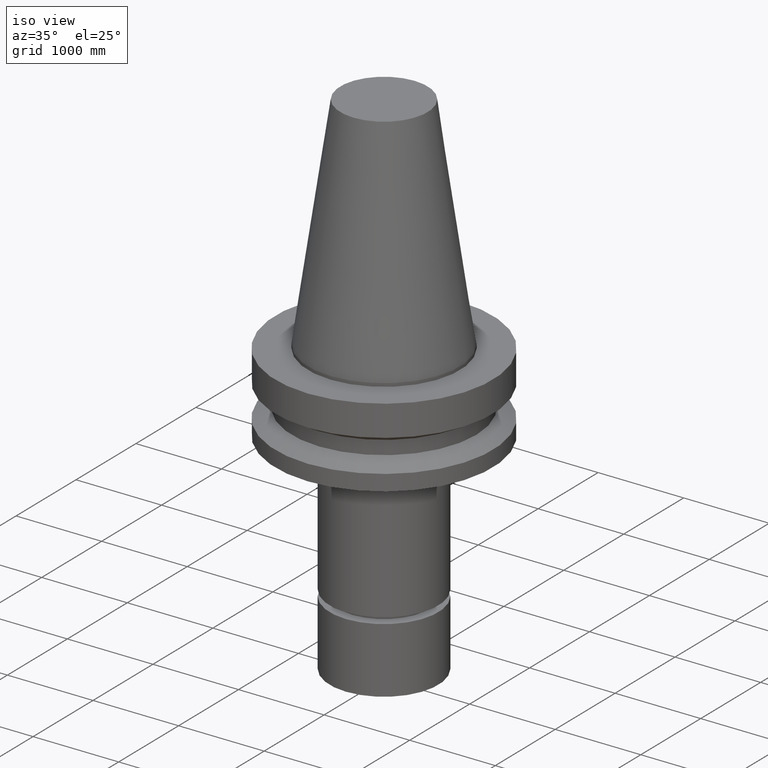
[diagram: clean part render]
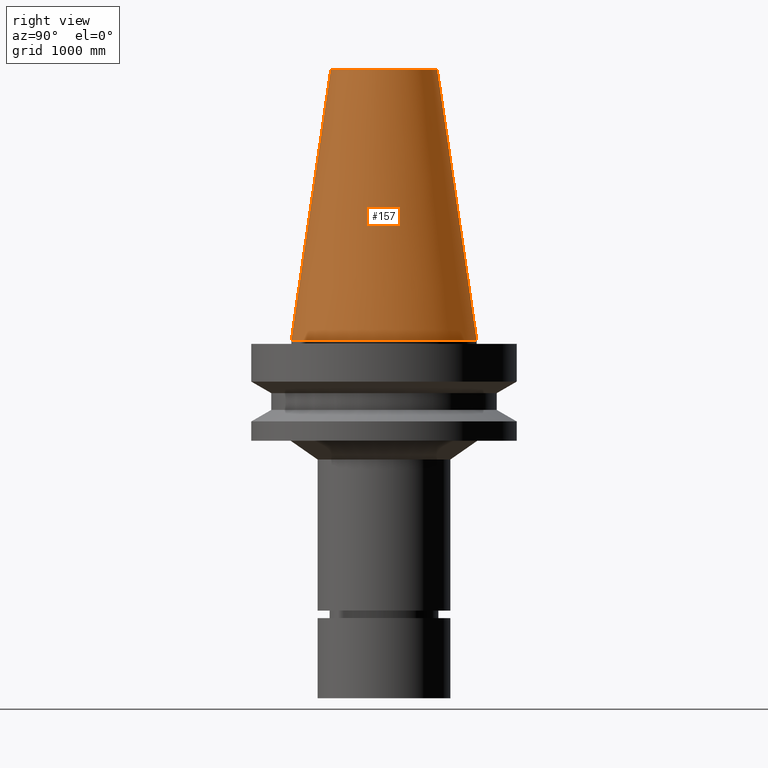
[diagram: tour spotlight — one face highlighted and labeled with its STEP entity id]
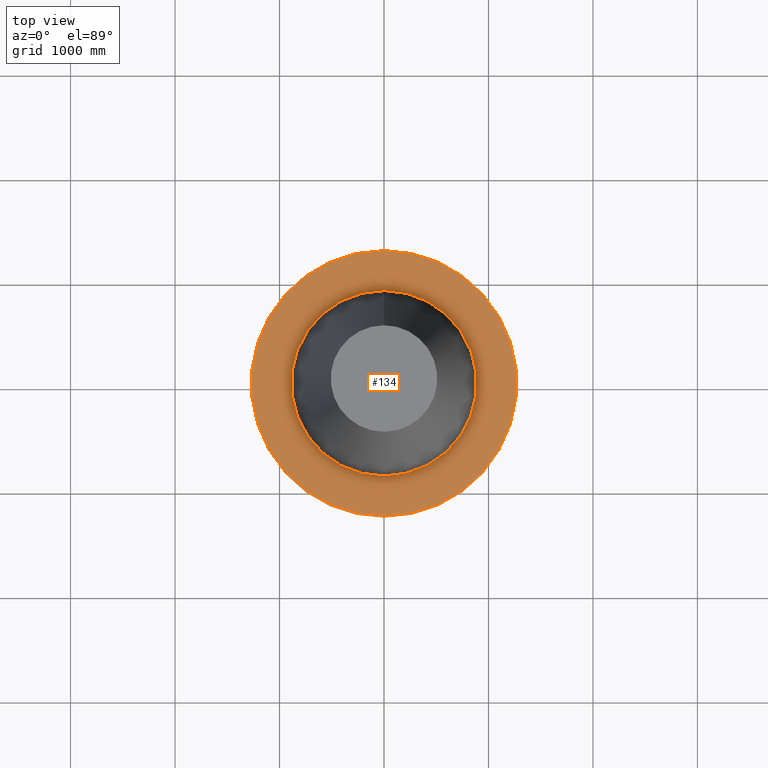
[diagram: tour spotlight — one face highlighted and labeled with its STEP entity id]
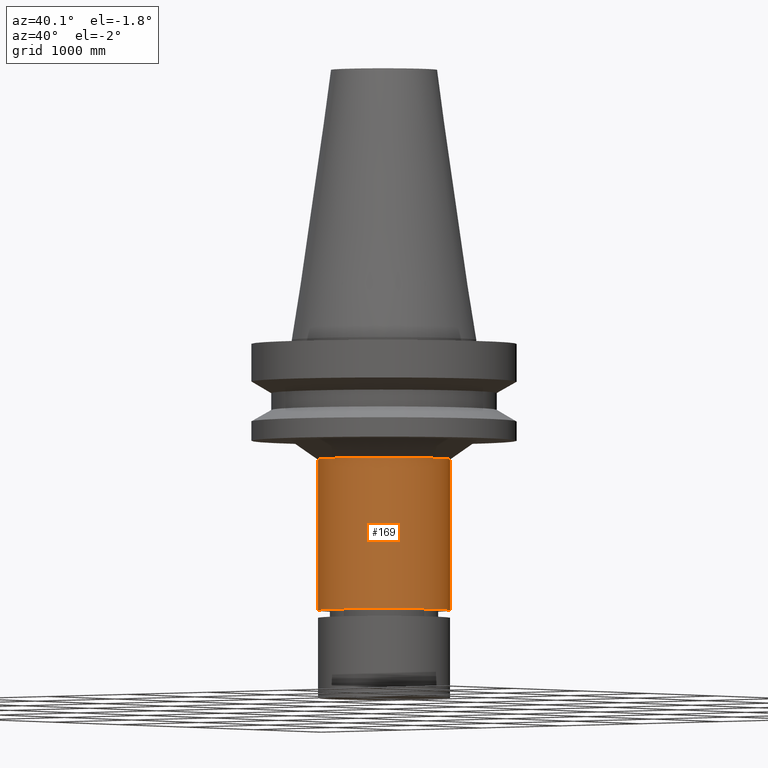
[diagram: tour spotlight — one face highlighted and labeled with its STEP entity id]
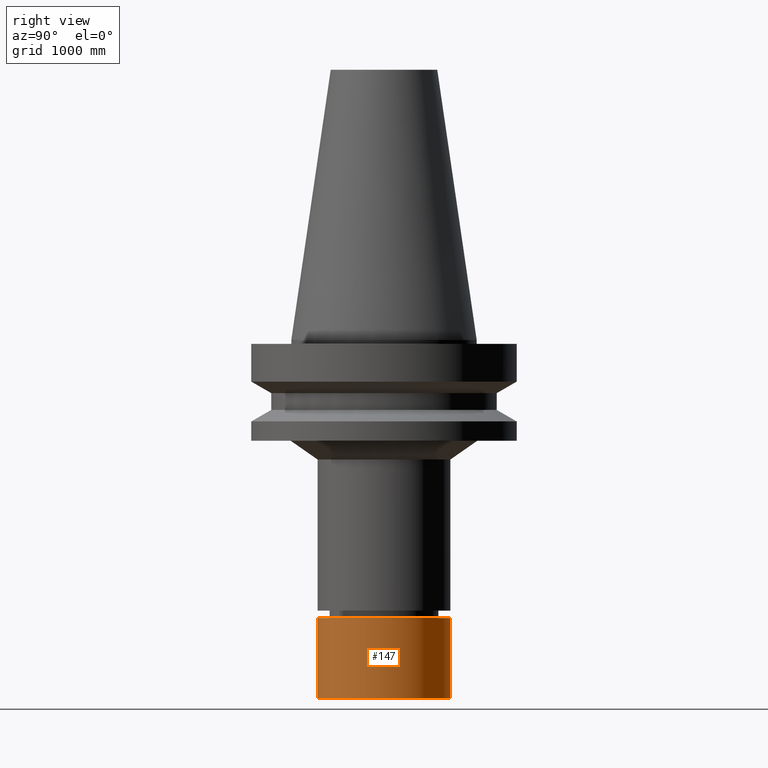
[diagram: tour spotlight — one face highlighted and labeled with its STEP entity id]
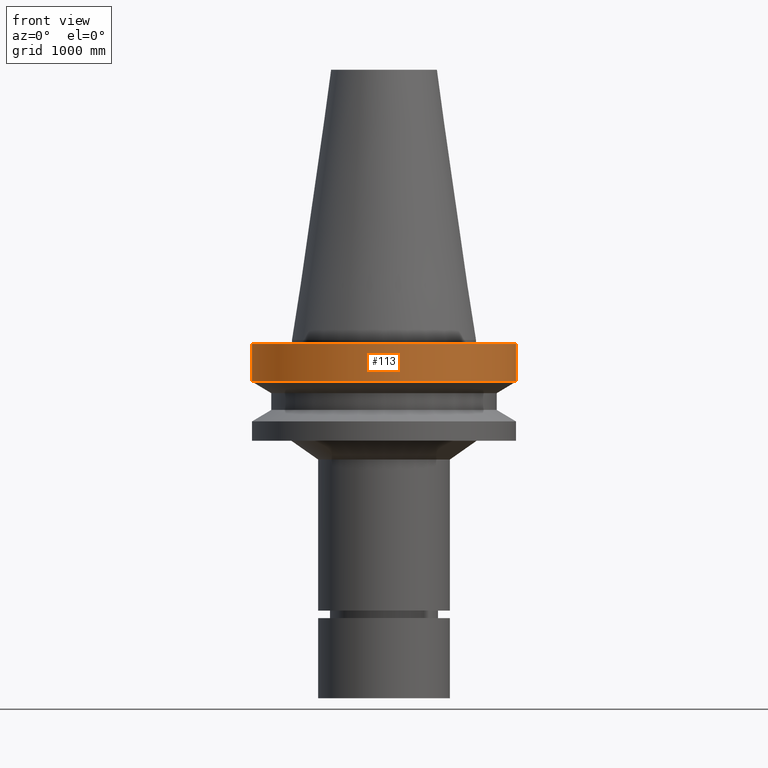
[diagram: tour spotlight — one face highlighted and labeled with its STEP entity id]
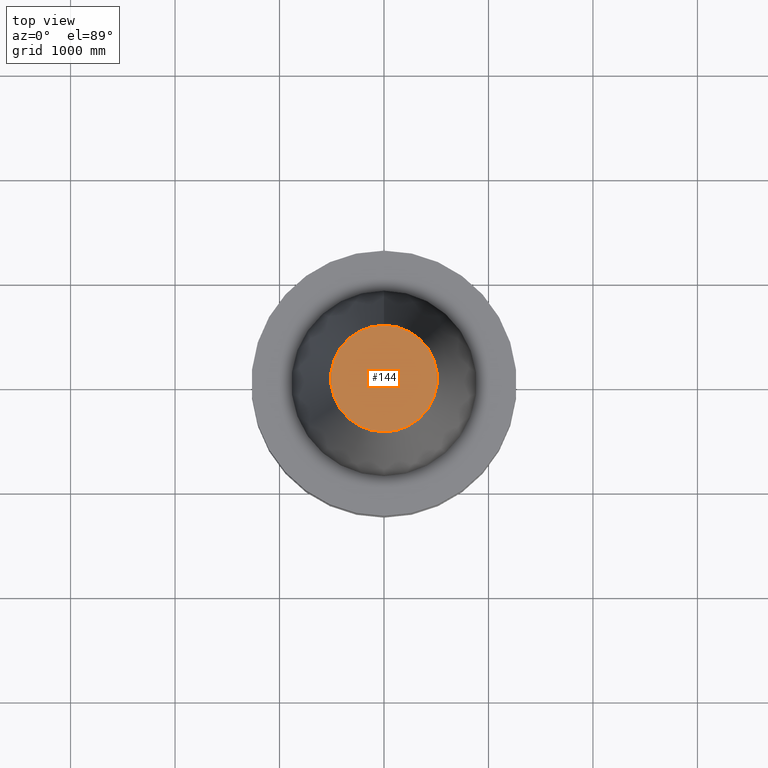
[diagram: tour spotlight — one face highlighted and labeled with its STEP entity id]
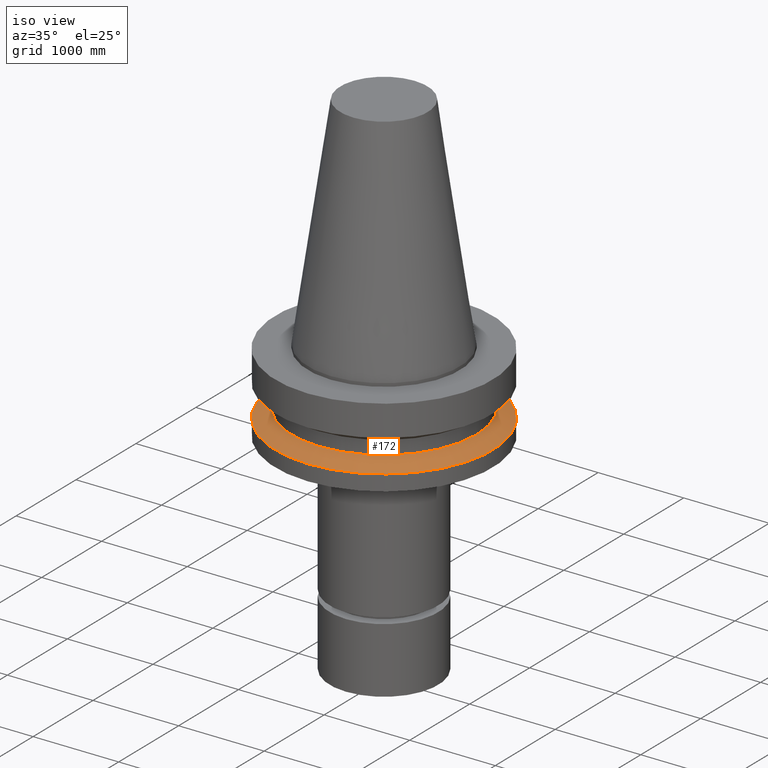
[diagram: tour spotlight — one face highlighted and labeled with its STEP entity id]
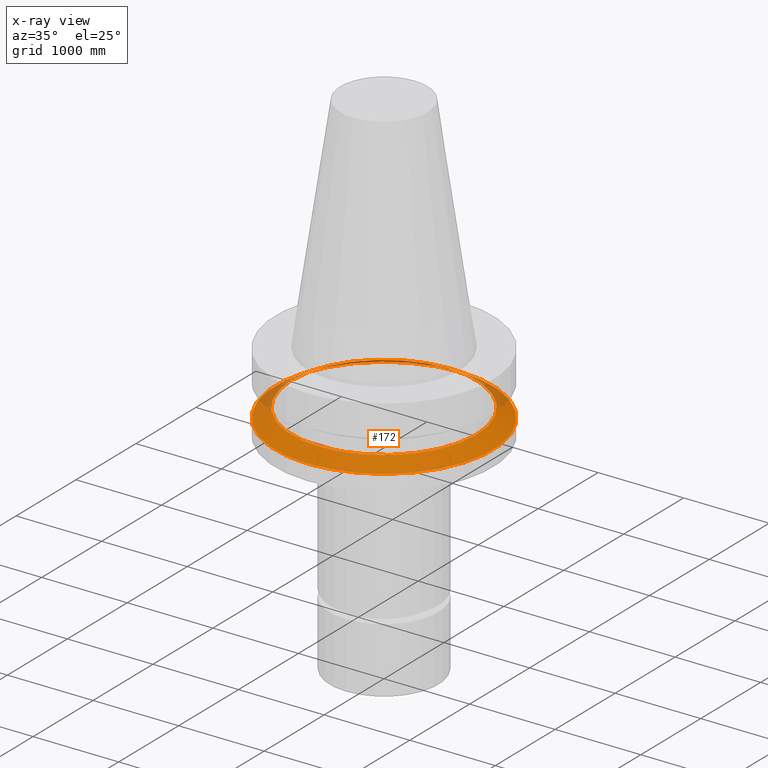
[diagram: x-ray of the same camera — body ghosted, this tour face saturated]
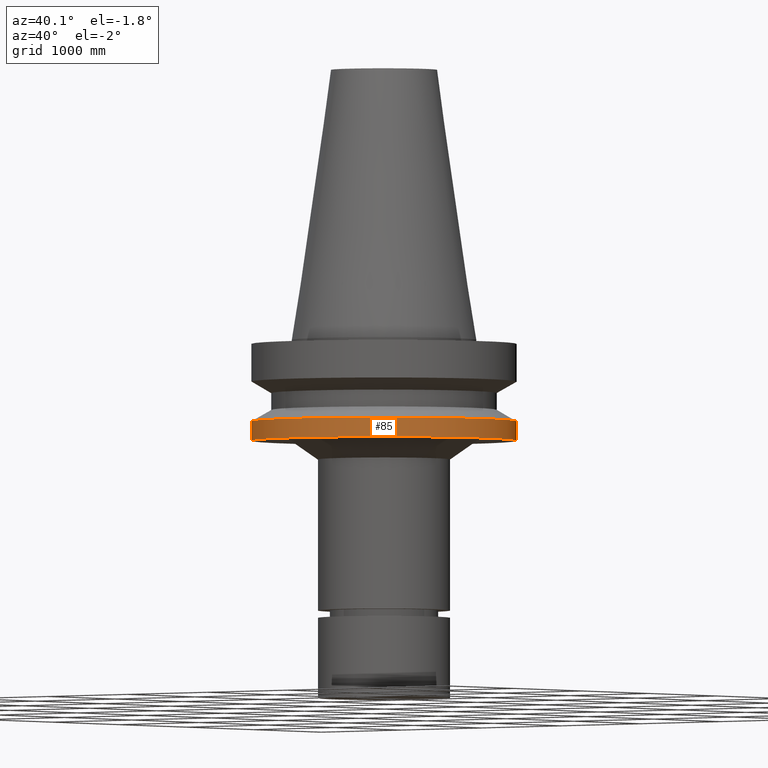
[diagram: tour spotlight — one face highlighted and labeled with its STEP entity id]
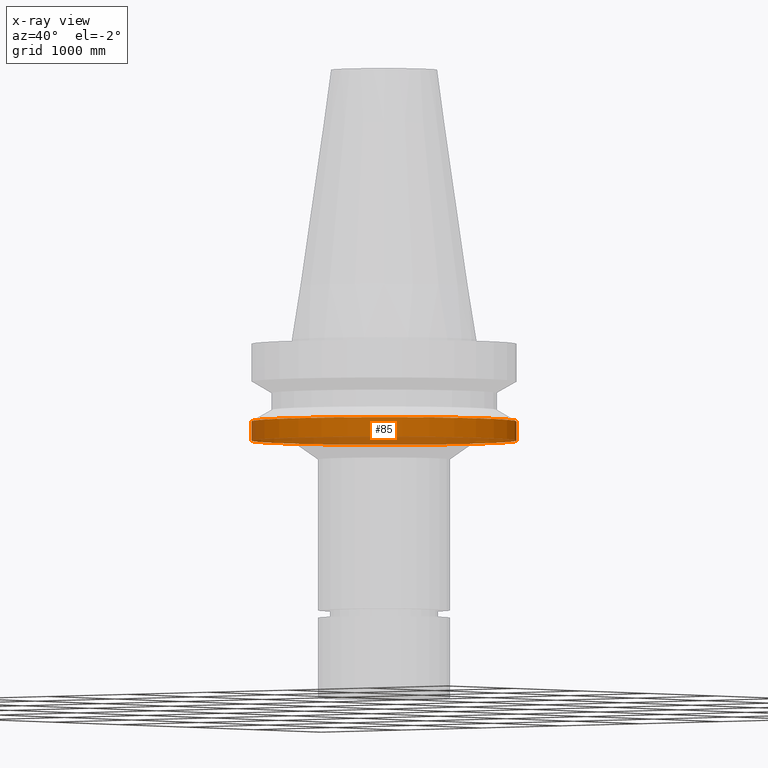
[diagram: x-ray of the same camera — body ghosted, this tour face saturated]
A machine part: a face-by-face anatomy tour. The part has 21 B-rep faces; the first image is the clean iso view, then the 8 largest visible faces are spotlighted one at a time (largest first), each with its STEP entity span.

Face 1 — right view, entity #157. In plain terms, the highlighted conical surface has half-angle 8.297 deg.
Definition (entity closure, byte-faithful):
#131=EDGE_CURVE('Unnamed[1]',#288,#288,#289,.T.);
#154=EDGE_CURVE('Unnamed[1]',#322,#322,#323,.T.);
#157=ADVANCED_FACE('Unnamed[1]',(#326,#327),#328,.T.);
#288=VERTEX_POINT('',#487);
#289=CIRCLE('',#488,20.0791666651884);
#322=VERTEX_POINT('',#529);
#323=CIRCLE('',#530,34.925);
#326=FACE_BOUND('',#534,.T.);
#327=FACE_BOUND('',#535,.T.);
#328=CONICAL_SURFACE('',#536,27.5020833325942,0.144812498253157);
#487=CARTESIAN_POINT('',(-6.23345220766003E-015,20.0791666651884,101.8));
#488=AXIS2_PLACEMENT_3D('',#677,#678,#679);
#529=CARTESIAN_POINT('',(-4.30483861169435E-031,34.925,4.27707894602213E-015));
#530=AXIS2_PLACEMENT_3D('',#713,#714,#715);
#534=EDGE_LOOP('',(#717));
#535=EDGE_LOOP('',(#718));
#536=AXIS2_PLACEMENT_3D('',#719,#720,#721);
#677=CARTESIAN_POINT('',(-6.23345220766003E-015,1.30258929046129E-014,101.8));
#678=DIRECTION('',(-6.12323399573677E-017,-1.5261999847694E-017,1.0));
#679=DIRECTION('',(-5.76168069386895E-033,1.0,1.5261999847694E-017));
#713=CARTESIAN_POINT('',(-1.79707006884519E-046,1.45795644891122E-014,1.78548169845537E-030));
#714=DIRECTION('',(-6.12323399573677E-017,-1.52619998477369E-017,1.0));
#715=DIRECTION('',(-5.761680693874E-033,1.0,1.52619998477369E-017));
#717=ORIENTED_EDGE('',*,*,#131,.F.);
#718=ORIENTED_EDGE('',*,*,#154,.T.);
#719=CARTESIAN_POINT('',(-3.11672610383001E-015,1.38027286968626E-014,50.9));
#720=DIRECTION('',(6.12323399573677E-017,1.52619998476919E-017,-1.0));
#721=DIRECTION('',(-5.76168069388031E-033,1.0,1.52619998476919E-017));

Face 2 — top view, entity #134. In plain terms, the highlighted planar face has unit normal (-0, -0, 1).
Definition (entity closure, byte-faithful):
#102=EDGE_CURVE('Unnamed[1]',#244,#244,#245,.T.);
#134=ADVANCED_FACE('Unnamed[1]',(#292,#293),#294,.T.);
#141=EDGE_CURVE('Unnamed[1]',#302,#302,#303,.T.);
#244=VERTEX_POINT('',#431);
#245=CIRCLE('',#432,50.0);
#292=FACE_BOUND('',#492,.T.);
#293=FACE_OUTER_BOUND('',#493,.T.);
#294=PLANE('',#494);
#302=VERTEX_POINT('',#504);
#303=CIRCLE('',#505,34.925);
#431=CARTESIAN_POINT('',(9.18485099360509E-017,50.0,-1.49999999999999));
#432=AXIS2_PLACEMENT_3D('',#628,#629,#630);
#492=EDGE_LOOP('',(#681));
#493=EDGE_LOOP('',(#682));
#494=AXIS2_PLACEMENT_3D('',#683,#684,#685);
#504=CARTESIAN_POINT('',(9.18485099360511E-017,34.925,-1.5));
#505=AXIS2_PLACEMENT_3D('',#690,#691,#692);
#628=CARTESIAN_POINT('',(9.18485099360515E-017,1.46024574888838E-014,-1.5));
#629=DIRECTION('',(-6.12323399573677E-017,-1.52619998477039E-017,1.0));
#630=DIRECTION('',(-5.76168069387682E-033,1.0,1.52619998477039E-017));
#681=ORIENTED_EDGE('',*,*,#141,.F.);
#682=ORIENTED_EDGE('',*,*,#102,.T.);
#683=CARTESIAN_POINT('',(9.1848509936051E-017,42.4625,-1.49999999999999));
#684=DIRECTION('',(-6.12323399573677E-017,-1.22464679914735E-016,1.0));
#685=DIRECTION('',(-1.23259516440783E-032,1.0,1.22464679914735E-016));
#690=CARTESIAN_POINT('',(9.18485099360515E-017,1.46024574888838E-014,-1.5));
#691=DIRECTION('',(-6.12323399573677E-017,-1.52619998477369E-017,1.0));
#692=DIRECTION('',(-5.761680693874E-033,1.0,1.52619998477369E-017));

Face 3 — auxiliary view, entity #169. In plain terms, the highlighted cylindrical surface (bore or boss wall) has radius 635 mm, axis along (-0, -0, 1).
Definition (entity closure, byte-faithful):
#115=EDGE_CURVE('Unnamed[1]',#265,#265,#266,.T.);
#152=EDGE_CURVE('Unnamed[1]',#319,#319,#320,.T.);
#169=ADVANCED_FACE('Unnamed[1]',(#344,#345),#346,.T.);
#265=VERTEX_POINT('',#457);
#266=CIRCLE('',#458,25.0000000000004);
#319=VERTEX_POINT('',#525);
#320=CIRCLE('',#526,25.0000000000001);
#344=FACE_BOUND('',#555,.T.);
#345=FACE_BOUND('',#556,.T.);
#346=CYLINDRICAL_SURFACE('',#557,25.0000000000002);
#457=CARTESIAN_POINT('',(2.75941339741642E-015,25.0000000000004,-45.0646406676215));
#458=AXIS2_PLACEMENT_3D('',#652,#653,#654);
#525=CARTESIAN_POINT('',(6.24570832399481E-015,25.0000000000001,-102.000157569404));
#526=AXIS2_PLACEMENT_3D('',#710,#711,#712);
#555=EDGE_LOOP('',(#736));
#556=EDGE_LOOP('',(#737));
#557=AXIS2_PLACEMENT_3D('',#738,#739,#740);
#652=CARTESIAN_POINT('',(2.75941339741642E-015,1.52673410281196E-014,-45.0646406676215));
#653=DIRECTION('',(-6.12323399573677E-017,-1.52619998477036E-017,1.0));
#654=DIRECTION('',(-5.76168069387672E-033,1.0,1.52619998477036E-017));
#710=CARTESIAN_POINT('',(6.24570832399481E-015,1.61362908784053E-014,-102.000157569404));
#711=DIRECTION('',(-6.12323399573676E-017,-1.52619998477038E-017,1.0));
#712=DIRECTION('',(-5.7616806938768E-033,1.0,1.52619998477038E-017));
#736=ORIENTED_EDGE('',*,*,#115,.F.);
#737=ORIENTED_EDGE('',*,*,#152,.T.);
#738=CARTESIAN_POINT('',(4.50256086070562E-015,1.57018159532625E-014,-73.5323991185128));
#739=DIRECTION('',(-6.12323399573677E-017,-1.52619998477037E-017,1.0));
#740=DIRECTION('',(-5.76168069386959E-033,1.0,1.52619998477037E-017));

Face 4 — right view, entity #147. In plain terms, the highlighted cylindrical surface (bore or boss wall) has radius 635 mm, axis along (0, 0, -1).
Definition (entity closure, byte-faithful):
#77=EDGE_CURVE('Unnamed[1]',#204,#204,#205,.T.);
#90=EDGE_CURVE('Unnamed[1]',#225,#225,#226,.T.);
#147=ADVANCED_FACE('Unnamed[1]',(#310,#311),#312,.T.);
#204=VERTEX_POINT('',#381);
#205=CIRCLE('',#382,25.0);
#225=VERTEX_POINT('',#407);
#226=CIRCLE('',#408,25.0);
#310=FACE_BOUND('',#514,.T.);
#311=FACE_BOUND('',#515,.T.);
#312=CYLINDRICAL_SURFACE('',#516,25.0);
#381=CARTESIAN_POINT('',(8.26636589424463E-015,25.0,-135.0));
#382=AXIS2_PLACEMENT_3D('',#583,#584,#585);
#407=CARTESIAN_POINT('',(6.41714922753213E-015,25.0,-104.8));
#408=AXIS2_PLACEMENT_3D('',#607,#608,#609);
#514=EDGE_LOOP('',(#699));
#515=EDGE_LOOP('',(#700));
#516=AXIS2_PLACEMENT_3D('',#701,#702,#703);
#583=CARTESIAN_POINT('',(8.26636589424463E-015,1.66399344685563E-014,-135.0));
#584=DIRECTION('',(6.12323399573677E-017,1.52619998477336E-017,-1.0));
#585=DIRECTION('',(-5.76168069387474E-033,1.0,1.52619998477336E-017));
#607=CARTESIAN_POINT('',(6.41714922753213E-015,1.61790220731547E-014,-104.8));
#608=DIRECTION('',(6.12323399573677E-017,1.52619998477336E-017,-1.0));
#609=DIRECTION('',(-5.76168069387474E-033,1.0,1.52619998477336E-017));
#699=ORIENTED_EDGE('',*,*,#77,.F.);
#700=ORIENTED_EDGE('',*,*,#90,.T.);
#701=CARTESIAN_POINT('',(7.34175756088838E-015,1.64094782708555E-014,-119.9));
#702=DIRECTION('',(6.12323399573677E-017,1.52619998477336E-017,-1.0));
#703=DIRECTION('',(-5.76168069387474E-033,1.0,1.52619998477336E-017));

Face 5 — front view, entity #113. In plain terms, the highlighted cylindrical surface (bore or boss wall) has radius 1270 mm, axis along (-0, -0, 1).
Definition (entity closure, byte-faithful):
#102=EDGE_CURVE('Unnamed[1]',#244,#244,#245,.T.);
#104=EDGE_CURVE('Unnamed[1]',#247,#247,#248,.T.);
#113=ADVANCED_FACE('Unnamed[1]',(#261,#262),#263,.T.);
#244=VERTEX_POINT('',#431);
#245=CIRCLE('',#432,50.0);
#247=VERTEX_POINT('',#435);
#248=CIRCLE('',#436,50.0);
#261=FACE_BOUND('',#452,.T.);
#262=FACE_BOUND('',#453,.T.);
#263=CYLINDRICAL_SURFACE('',#454,50.0);
#431=CARTESIAN_POINT('',(9.18485099360509E-017,50.0,-1.49999999999999));
#432=AXIS2_PLACEMENT_3D('',#628,#629,#630);
#435=CARTESIAN_POINT('',(9.61347737330674E-016,50.0,-15.7));
#436=AXIS2_PLACEMENT_3D('',#631,#632,#633);
#452=EDGE_LOOP('',(#647));
#453=EDGE_LOOP('',(#648));
#454=AXIS2_PLACEMENT_3D('',#649,#650,#651);
#628=CARTESIAN_POINT('',(9.18485099360515E-017,1.46024574888838E-014,-1.5));
#629=DIRECTION('',(-6.12323399573677E-017,-1.52619998477039E-017,1.0));
#630=DIRECTION('',(-5.76168069387682E-033,1.0,1.52619998477039E-017));
#631=CARTESIAN_POINT('',(9.61347737330675E-016,1.48191778867216E-014,-15.7));
#632=DIRECTION('',(-6.12323399573677E-017,-1.52619998477039E-017,1.0));
#633=DIRECTION('',(-5.76168069387682E-033,1.0,1.52619998477039E-017));
#647=ORIENTED_EDGE('',*,*,#102,.F.);
#648=ORIENTED_EDGE('',*,*,#104,.T.);
#649=CARTESIAN_POINT('',(5.26598123633363E-016,1.47108176878027E-014,-8.60000000000002));
#650=DIRECTION('',(-6.12323399573677E-017,-1.52619998477039E-017,1.0));
#651=DIRECTION('',(-5.76168069387682E-033,1.0,1.52619998477039E-017));

Face 6 — top view, entity #144. In plain terms, the highlighted planar face has unit normal (-0, -0, 1).
Definition (entity closure, byte-faithful):
#131=EDGE_CURVE('Unnamed[1]',#288,#288,#289,.T.);
#144=ADVANCED_FACE('Unnamed[1]',(#306),#307,.T.);
#288=VERTEX_POINT('',#487);
#289=CIRCLE('',#488,20.0791666651884);
#306=FACE_OUTER_BOUND('',#509,.T.);
#307=PLANE('',#510);
#487=CARTESIAN_POINT('',(-6.23345220766003E-015,20.0791666651884,101.8));
#488=AXIS2_PLACEMENT_3D('',#677,#678,#679);
#509=EDGE_LOOP('',(#694));
#510=AXIS2_PLACEMENT_3D('',#695,#696,#697);
#677=CARTESIAN_POINT('',(-6.23345220766003E-015,1.30258929046129E-014,101.8));
#678=DIRECTION('',(-6.12323399573677E-017,-1.5261999847694E-017,1.0));
#679=DIRECTION('',(-5.76168069386895E-033,1.0,1.5261999847694E-017));
#694=ORIENTED_EDGE('',*,*,#131,.T.);
#695=CARTESIAN_POINT('',(-6.23345220766003E-015,10.0395833325942,101.8));
#696=DIRECTION('',(-6.12323399573677E-017,-1.22464679914735E-016,1.0));
#697=DIRECTION('',(-1.23259516440783E-032,1.0,1.22464679914735E-016));

Face 7 — iso view, entity #172. An x-ray twin of the same camera follows (body ghosted, this face saturated) — the face is partly hidden behind the body. In plain terms, the highlighted conical surface has half-angle 60 deg.
Definition (entity closure, byte-faithful):
#129=EDGE_CURVE('Unnamed[1]',#285,#285,#286,.T.);
#172=ADVANCED_FACE('Unnamed[1]',(#349,#350),#351,.T.);
#177=EDGE_CURVE('Unnamed[1]',#357,#357,#358,.T.);
#285=VERTEX_POINT('',#483);
#286=CIRCLE('',#484,50.0);
#349=FACE_BOUND('',#561,.T.);
#350=FACE_BOUND('',#562,.T.);
#351=CONICAL_SURFACE('',#563,46.25,1.04719755108882);
#357=VERTEX_POINT('',#571);
#358=CIRCLE('',#572,42.5);
#483=CARTESIAN_POINT('',(1.87983283669119E-015,50.0,-30.7000000000001));
#484=AXIS2_PLACEMENT_3D('',#674,#675,#676);
#561=EDGE_LOOP('',(#742));
#562=EDGE_LOOP('',(#743));
#563=AXIS2_PLACEMENT_3D('',#744,#745,#746);
#571=CARTESIAN_POINT('',(1.61468902694397E-015,42.5,-26.3698729800001));
#572=AXIS2_PLACEMENT_3D('',#752,#753,#754);
#674=CARTESIAN_POINT('',(1.87983283669119E-015,1.50481078844377E-014,-30.7));
#675=DIRECTION('',(-6.12323399573677E-017,-1.52619998477039E-017,1.0));
#676=DIRECTION('',(-5.76168069387682E-033,1.0,1.52619998477039E-017));
#742=ORIENTED_EDGE('',*,*,#177,.F.);
#743=ORIENTED_EDGE('',*,*,#129,.T.);
#744=CARTESIAN_POINT('',(1.74726093181758E-015,1.50150646854777E-014,-28.5349364900001));
#745=DIRECTION('',(6.12323399573677E-017,1.52619998477633E-017,-1.0));
#746=DIRECTION('',(-5.76168069387139E-033,1.0,1.52619998477633E-017));
#752=CARTESIAN_POINT('',(1.61468902694397E-015,1.49820214865177E-014,-26.3698729800001));
#753=DIRECTION('',(-6.12323399573677E-017,-1.52619998477571E-017,1.0));
#754=DIRECTION('',(-5.76168069387766E-033,1.0,1.52619998477571E-017));

Face 8 — auxiliary view, entity #85. An x-ray twin of the same camera follows (body ghosted, this face saturated) — the face is partly hidden behind the body. In plain terms, the highlighted cylindrical surface (bore or boss wall) has radius 1270 mm, axis along (-0, -0, 1).
Definition (entity closure, byte-faithful):
#85=ADVANCED_FACE('Unnamed[1]',(#216,#217),#218,.T.);
#120=EDGE_CURVE('Unnamed[1]',#272,#272,#273,.T.);
#129=EDGE_CURVE('Unnamed[1]',#285,#285,#286,.T.);
#216=FACE_BOUND('',#396,.T.);
#217=FACE_BOUND('',#397,.T.);
#218=CYLINDRICAL_SURFACE('',#398,50.0);
#272=VERTEX_POINT('',#466);
#273=CIRCLE('',#467,50.0);
#285=VERTEX_POINT('',#483);
#286=CIRCLE('',#484,50.0);
#396=EDGE_LOOP('',(#596));
#397=EDGE_LOOP('',(#597));
#398=AXIS2_PLACEMENT_3D('',#598,#599,#600);
#466=CARTESIAN_POINT('',(2.32682891837996E-015,50.0,-37.9999999999998));
#467=AXIS2_PLACEMENT_3D('',#660,#661,#662);
#483=CARTESIAN_POINT('',(1.87983283669119E-015,50.0,-30.7000000000001));
#484=AXIS2_PLACEMENT_3D('',#674,#675,#676);
#596=ORIENTED_EDGE('',*,*,#129,.F.);
#597=ORIENTED_EDGE('',*,*,#120,.T.);
#598=CARTESIAN_POINT('',(2.10333087753557E-015,1.51038141838819E-014,-34.3499999999999));
#599=DIRECTION('',(-6.12323399573677E-017,-1.52619998477039E-017,1.0));
#600=DIRECTION('',(-5.76168069387682E-033,1.0,1.52619998477039E-017));
#660=CARTESIAN_POINT('',(2.32682891837996E-015,1.51595204833261E-014,-37.9999999999998));
#661=DIRECTION('',(-6.12323399573677E-017,-1.52619998477039E-017,1.0));
#662=DIRECTION('',(-5.76168069386964E-033,1.0,1.52619998477039E-017));
#674=CARTESIAN_POINT('',(1.87983283669119E-015,1.50481078844377E-014,-30.7));
#675=DIRECTION('',(-6.12323399573677E-017,-1.52619998477039E-017,1.0));
#676=DIRECTION('',(-5.76168069387682E-033,1.0,1.52619998477039E-017));